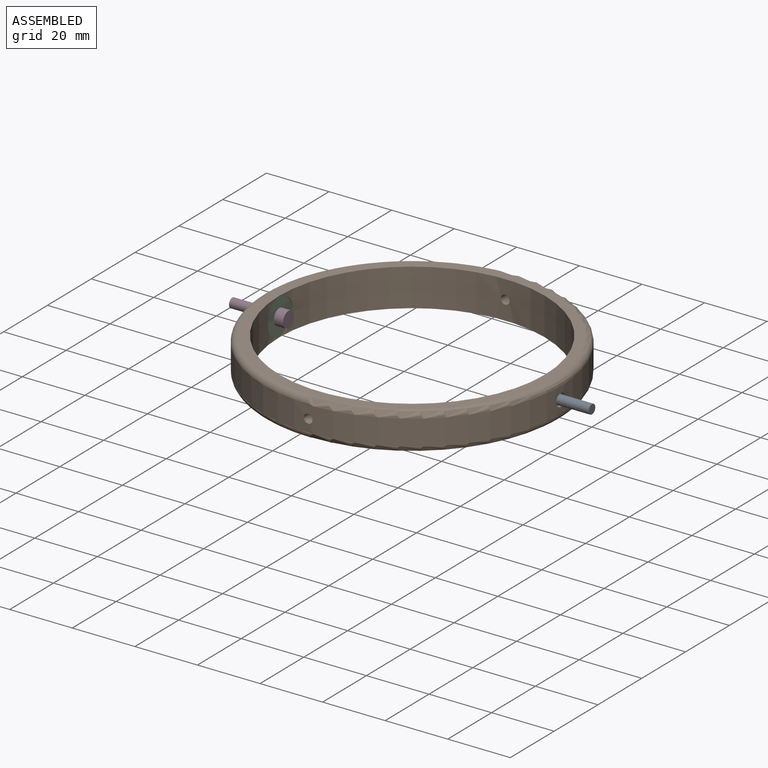
[diagram: assembled view]
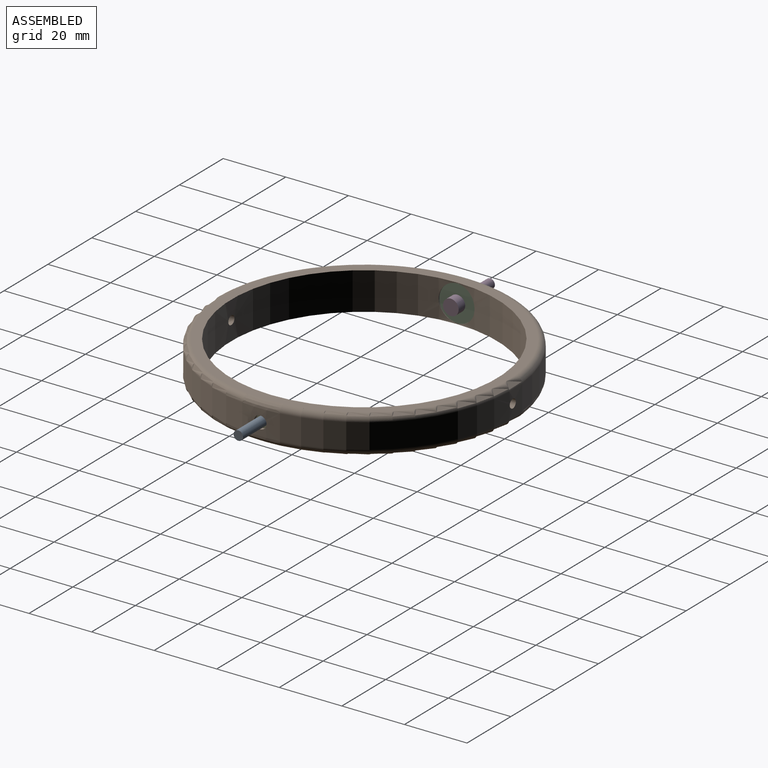
[diagram: assembled view, second angle]
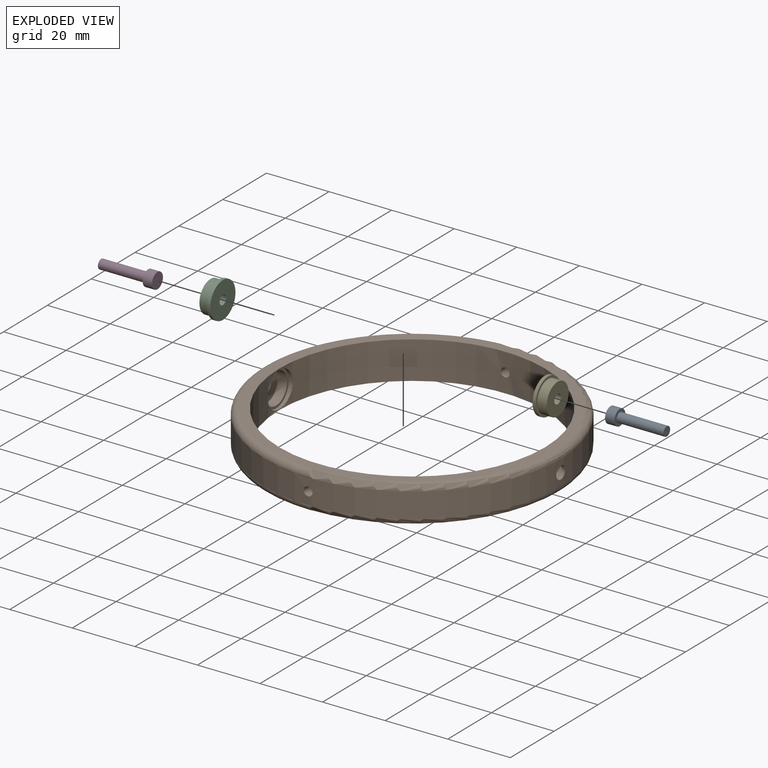
[diagram: exploded view]
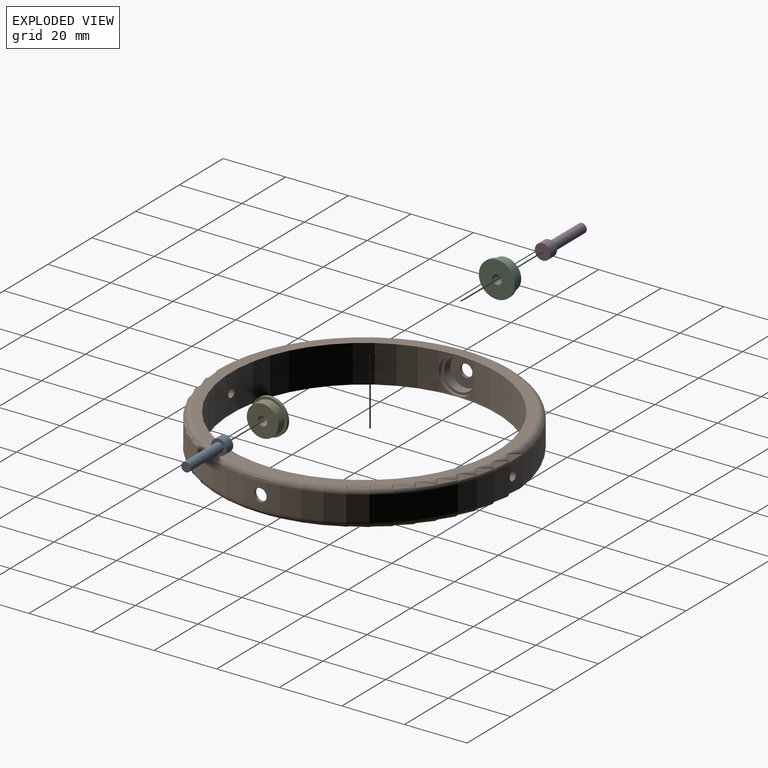
[diagram: exploded view, second angle]
ASSEMBLY  parts=5 mates=4
PART A: 5 faces, bbox 5x5x18 mm
  f0: cylinder r=2.5mm len=5mm, axis (0,0,-1), area 47.1mm2, adj f1,f2
  f1: plane 5x5mm, normal (0,0,1), area 12.6mm2, adj f0,f3
  f2: plane 5x5mm, normal (0,0,-1), area 19.6mm2, adj f0
  f3: cylinder r=1.5mm len=15mm, axis (0,0,-1), area 141.4mm2, adj f1,f4
  f4: plane 3x3mm, normal (0,0,1), area 7.1mm2, adj f3
PART B: 21 faces, bbox 102.4x102.8x12 mm
  f0: plane 91x91mm, normal (0,0,1), area 829.4mm2, adj f6,f19,f20
  f1: plane 91x91mm, normal (0,0,-1), area 829.4mm2, adj f6,f17,f18
  f2: cylinder r=2mm len=4mm, axis (1,0,0), area 12.6mm2, adj f5,f10
  f3: cylinder r=2mm len=4mm, axis (1,0,0), area 12.6mm2, adj f14,f16
  f4: cylinder r=1.4mm len=5mm, axis (0,-1,0), area 44mm2, adj f5,f6
  f5: cylinder r=47.5mm len=95mm, axis (0,0,-1), area 2266.5mm2, adj f2,f4,f15,f16,f17,f19
  f6: cylinder r=42.5mm len=85mm, axis (0,0,-1), area 2984mm2, adj f0,f1,f4,f7,f11,f15
  f7: cylinder r=5.75mm len=11.5mm, axis (1,0,0), area 43.2mm2, adj f6,f8
  f8: plane 11.5x11.5mm, normal (1,0,0), area 25.3mm2, adj f7,f9
  f9: cylinder r=5mm len=10mm, axis (1,0,0), area 94.2mm2, adj f8,f10
  f10: plane 10x10mm, normal (1,0,0), area 66mm2, adj f2,f9
  f11: cylinder r=5.75mm len=11.5mm, axis (-1,0,0), area 43.2mm2, adj f6,f12
  f12: plane 11.5x11.5mm, normal (-1,0,0), area 25.3mm2, adj f11,f13
  f13: cylinder r=5mm len=10mm, axis (-1,0,0), area 94.2mm2, adj f12,f14
  f14: plane 10x10mm, normal (-1,0,0), area 66mm2, adj f3,f13
  f15: cylinder r=1.4mm len=5mm, axis (0,-1,0), area 44mm2, adj f5,f6
  f16: extruded ~12x8mm, area 83.7mm2, adj f3,f5,f18,f20
  f17: torus R=45.5mm, axis (0,0,1), area 886mm2, adj f1,f5,f18
  f18: bspline ~16.15x2.63mm, area 37.2mm2, adj f1,f16,f17
  f19: torus R=45.5mm, axis (0,0,1), area 886mm2, adj f0,f5,f20
  f20: bspline ~16.15x2.63mm, area 37.2mm2, adj f0,f16,f19
PART C: 6 faces, bbox 11.5x11.5x4 mm
  f0: cylinder r=1.5mm len=4mm, axis (0,0,-1), area 37.7mm2, adj f2,f4
  f1: cylinder r=5mm len=10mm, axis (0,0,-1), area 94.2mm2, adj f2,f5
  f2: plane 10x10mm, normal (0,0,-1), area 71.5mm2, adj f0,f1
  f3: cylinder r=5.75mm len=11.5mm, axis (0,0,-1), area 36.1mm2, adj f4,f5
  f4: plane 11.5x11.5mm, normal (0,0,1), area 96.8mm2, adj f0,f3
  f5: plane 11.5x11.5mm, normal (0,0,-1), area 25.3mm2, adj f1,f3
PART D: same geometry as A
PART E: same geometry as C
PLACE A rot(axis=(0.58,0.58,0.58),120deg) t=(31.72,-2.3,3.15)mm
PLACE B t=(-7.78,-2.3,-2.85)mm
PLACE C rot(axis=(0.71,0,0.71),180deg) t=(-54.28,-2.3,3.15)mm
PLACE D rot(axis=(-0.58,-0.58,0.58),120deg) t=(-47.28,-2.3,3.15)mm
PLACE E rot(axis=(0.71,0,-0.71),180deg) t=(38.72,-2.3,3.15)mm
MATE fastened A.f3 <-> E.f0  axis (1,0,0) through (34.72,-2.3,3.15)mm
MATE fastened D.f0 <-> C.f0  axis (-1,0,0) through (-50.28,-2.3,3.15)mm
MATE fastened E.f0 <-> B.f2  axis (1,0,0) through (38.72,-2.3,3.15)mm
MATE fastened C.f0 <-> B.f2  axis (-1,0,0) through (-54.28,-2.3,3.15)mm
